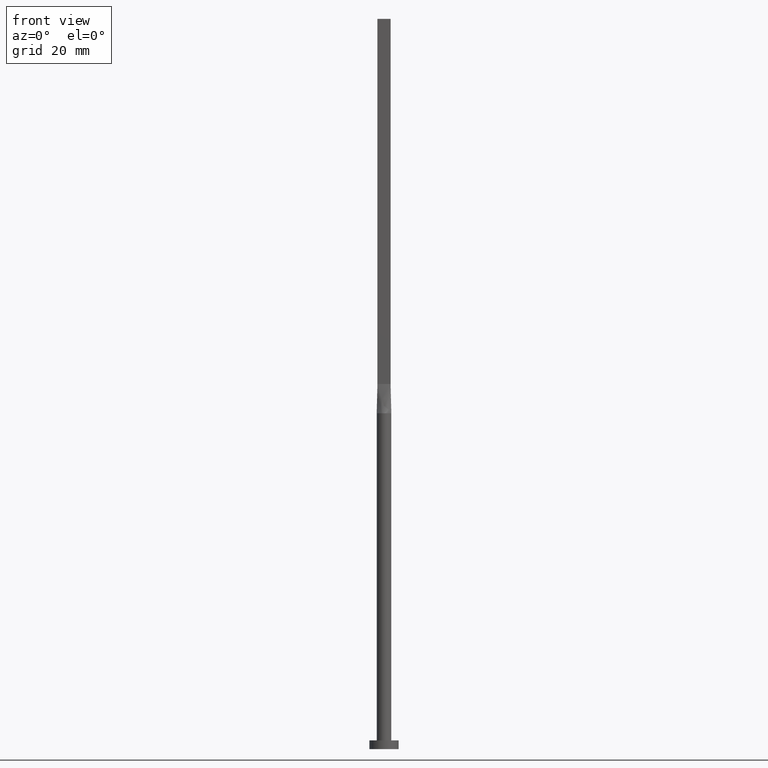
[diagram: clean part render]
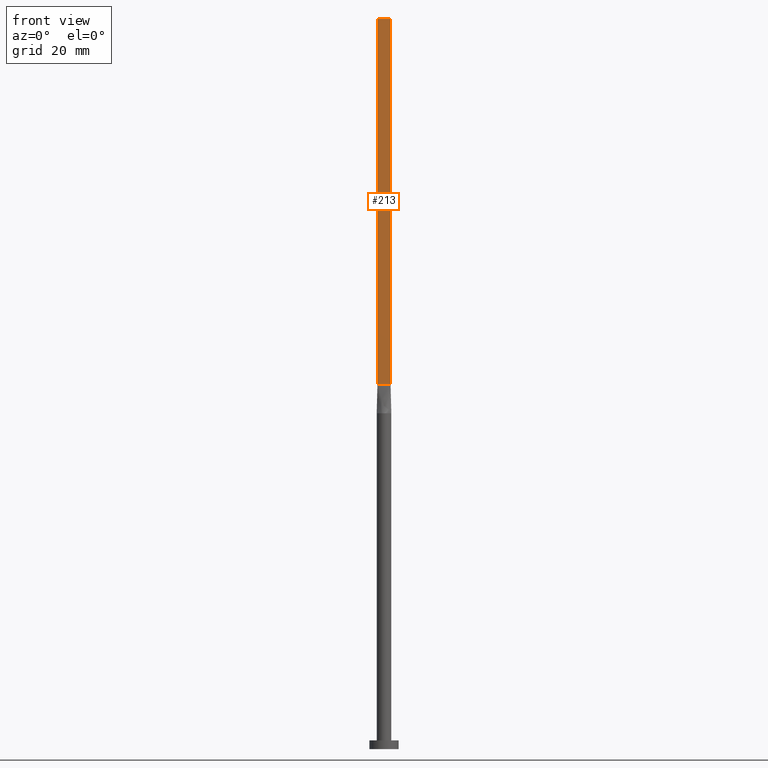
[diagram: same view with one face highlighted and labeled with its STEP entity id]
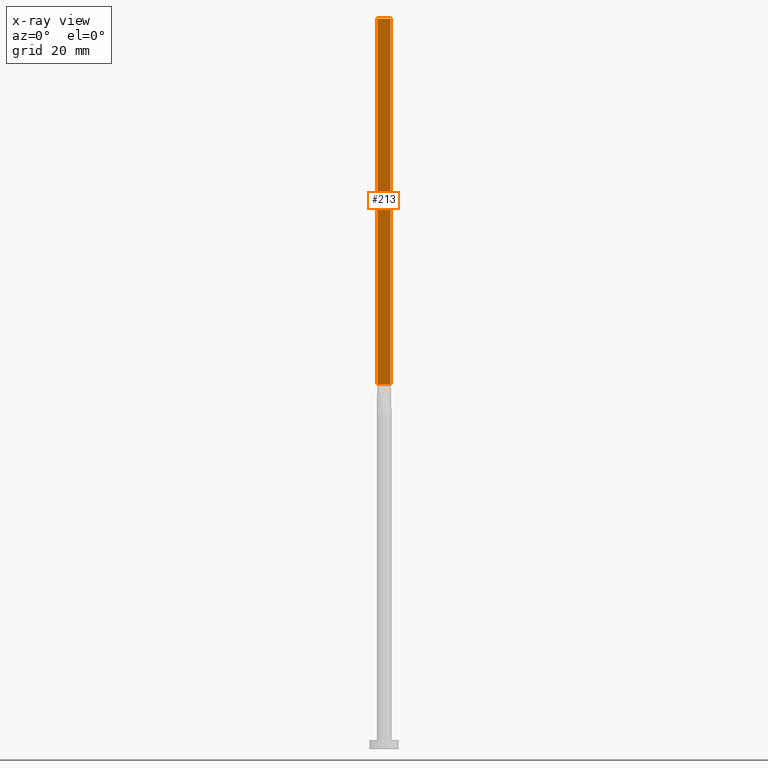
[diagram: x-ray of the same camera — body ghosted, the highlighted face saturated]
A machine part, front view. The second image highlights one B-rep face of the part: STEP entity #213.
The next image is the same camera in x-ray: the body ghosted, the highlighted face saturated — about 0% of this face is hidden behind the body in this view.
In plain terms, the highlighted planar face has unit normal (0, 1, -0).
Its self-contained STEP definition (entity closure, byte-faithful):
#9 = VERTEX_POINT ( 'NONE', #168 ) ;
#13 = ORIENTED_EDGE ( 'NONE', *, *, #233, .F. ) ;
#30 = AXIS2_PLACEMENT_3D ( 'NONE', #173, #136, #265 ) ;
#82 = DIRECTION ( 'NONE',  ( -0.000000000000000000, -0.000000000000000000, -1.000000000000000000 ) ) ;
#86 = EDGE_CURVE ( 'NONE', #435, #9, #166, .T. ) ;
#103 = VERTEX_POINT ( 'NONE', #252 ) ;
#134 = FACE_OUTER_BOUND ( 'NONE', #409, .T. ) ;
#135 = VECTOR ( 'NONE', #532, 1000.000000000000000 ) ;
#136 = DIRECTION ( 'NONE',  ( 7.228014483236697048E-17, 1.000000000000000000, -0.000000000000000000 ) ) ;
#166 = LINE ( 'NONE', #382, #389 ) ;
#168 = CARTESIAN_POINT ( 'NONE',  ( 2.250000000000000000, -0.4999999999999997780, 125.0000000000000000 ) ) ;
#173 = CARTESIAN_POINT ( 'NONE',  ( -2.250000000000000000, -0.4999999999999994449, 250.0000000000000000 ) ) ;
#197 = CARTESIAN_POINT ( 'NONE',  ( -2.250000000000000000, -0.4999999999999994449, 250.0000000000000000 ) ) ;
#205 = VECTOR ( 'NONE', #485, 1000.000000000000000 ) ;
#213 = ADVANCED_FACE ( 'NONE', ( #134 ), #302, .F. ) ;
#233 = EDGE_CURVE ( 'NONE', #103, #435, #522, .T. ) ;
#249 = LINE ( 'NONE', #288, #205 ) ;
#252 = CARTESIAN_POINT ( 'NONE',  ( -2.250000000000000000, -0.4999999999999994449, 250.0000000000000000 ) ) ;
#255 = VECTOR ( 'NONE', #332, 1000.000000000000000 ) ;
#262 = EDGE_CURVE ( 'NONE', #469, #9, #249, .T. ) ;
#265 = DIRECTION ( 'NONE',  ( -1.000000000000000000, 7.228014483236697048E-17, 0.000000000000000000 ) ) ;
#286 = EDGE_CURVE ( 'NONE', #103, #469, #336, .T. ) ;
#288 = CARTESIAN_POINT ( 'NONE',  ( -2.250000000000000000, -0.4999999999999994449, 125.0000000000000000 ) ) ;
#302 = PLANE ( 'NONE',  #30 ) ;
#332 = DIRECTION ( 'NONE',  ( -0.000000000000000000, -0.000000000000000000, -1.000000000000000000 ) ) ;
#336 = LINE ( 'NONE', #197, #255 ) ;
#343 = ORIENTED_EDGE ( 'NONE', *, *, #86, .F. ) ;
#376 = CARTESIAN_POINT ( 'NONE',  ( -2.250000000000000000, -0.4999999999999994449, 250.0000000000000000 ) ) ;
#382 = CARTESIAN_POINT ( 'NONE',  ( 2.250000000000000000, -0.4999999999999997780, 250.0000000000000000 ) ) ;
#389 = VECTOR ( 'NONE', #82, 1000.000000000000000 ) ;
#390 = ORIENTED_EDGE ( 'NONE', *, *, #262, .T. ) ;
#398 = CARTESIAN_POINT ( 'NONE',  ( 2.250000000000000000, -0.4999999999999997780, 250.0000000000000000 ) ) ;
#409 = EDGE_LOOP ( 'NONE', ( #390, #343, #13, #562 ) ) ;
#418 = CARTESIAN_POINT ( 'NONE',  ( -2.250000000000000000, -0.4999999999999994449, 125.0000000000000000 ) ) ;
#435 = VERTEX_POINT ( 'NONE', #398 ) ;
#469 = VERTEX_POINT ( 'NONE', #418 ) ;
#485 = DIRECTION ( 'NONE',  ( 1.000000000000000000, -7.228014483236697048E-17, 0.000000000000000000 ) ) ;
#522 = LINE ( 'NONE', #376, #135 ) ;
#532 = DIRECTION ( 'NONE',  ( 1.000000000000000000, -7.228014483236697048E-17, 0.000000000000000000 ) ) ;
#562 = ORIENTED_EDGE ( 'NONE', *, *, #286, .T. ) ;